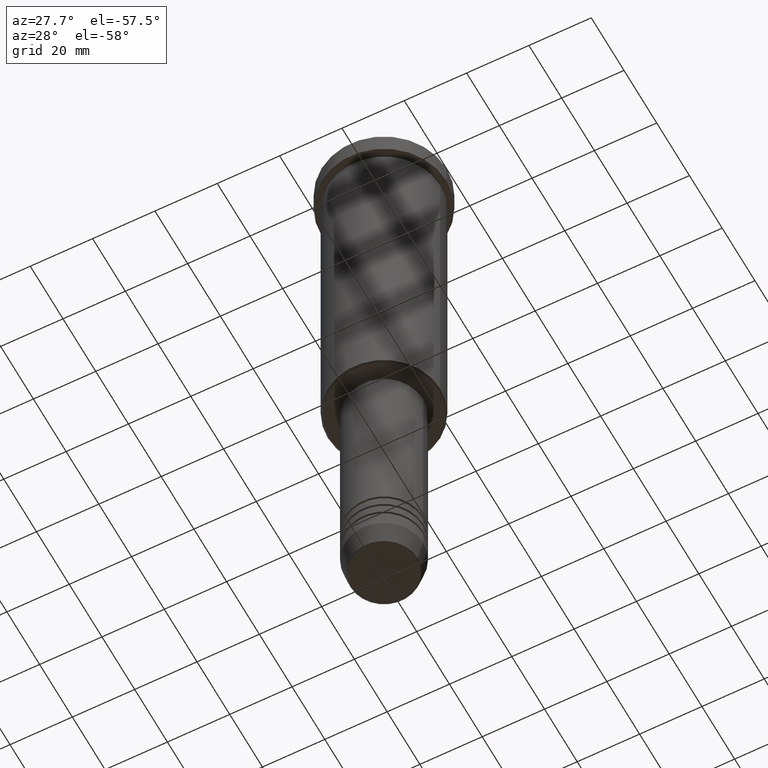
[diagram: clean part render]
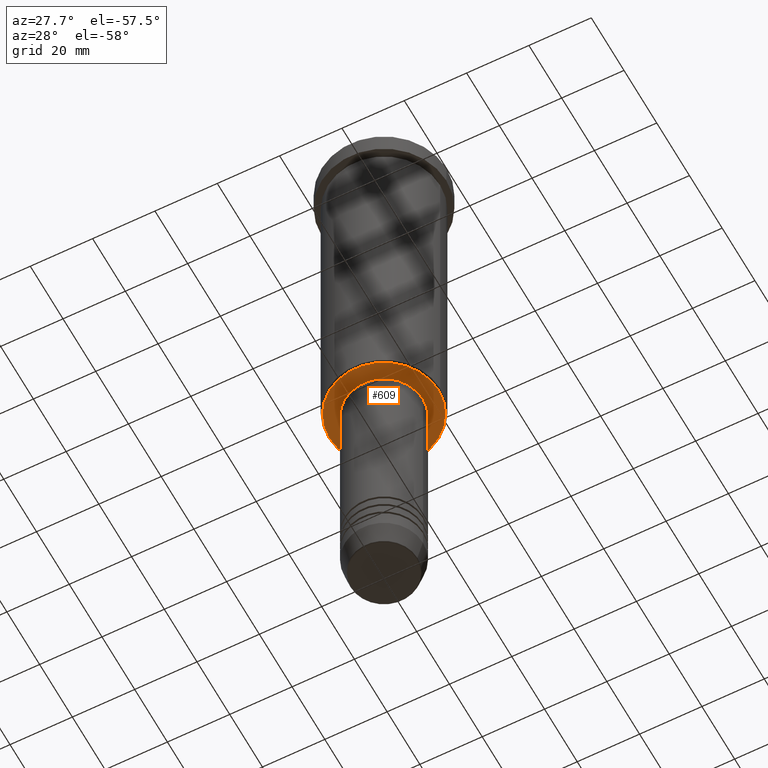
[diagram: same view with one face highlighted and labeled with its STEP entity id]
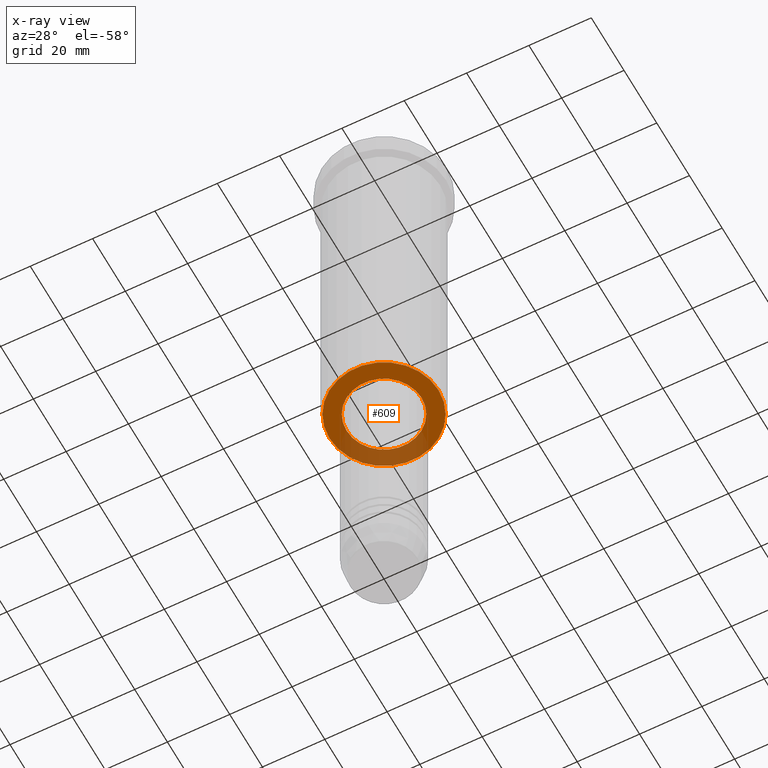
[diagram: x-ray of the same camera — body ghosted, the highlighted face saturated]
A machine part, auxiliary view. The second image highlights one B-rep face of the part: STEP entity #609.
The next image is the same camera in x-ray: the body ghosted, the highlighted face saturated — about 30% of this face is hidden behind the body in this view.
In plain terms, the highlighted planar face has unit normal (0, 0, -1).
Its self-contained STEP definition (entity closure, byte-faithful):
#23 = AXIS2_PLACEMENT_3D ( 'NONE', #151, #859, #684 ) ;
#68 = AXIS2_PLACEMENT_3D ( 'NONE', #428, #1173, #342 ) ;
#73 = CARTESIAN_POINT ( 'NONE',  ( 0.000000000000000000, 0.000000000000000000, -115.9999999999999858 ) ) ;
#81 = FACE_BOUND ( 'NONE', #203, .T. ) ;
#91 = EDGE_LOOP ( 'NONE', ( #173, #933 ) ) ;
#124 = CARTESIAN_POINT ( 'NONE',  ( 0.000000000000000000, 0.000000000000000000, -115.9999999999999858 ) ) ;
#129 = DIRECTION ( 'NONE',  ( 1.000000000000000000, 0.000000000000000000, 0.000000000000000000 ) ) ;
#151 = CARTESIAN_POINT ( 'NONE',  ( 0.000000000000000000, 0.000000000000000000, -115.9999999999999858 ) ) ;
#157 = CARTESIAN_POINT ( 'NONE',  ( 12.00000000000000000, 0.000000000000000000, -115.9999999999999858 ) ) ;
#165 = DIRECTION ( 'NONE',  ( 1.000000000000000000, 0.000000000000000000, 0.000000000000000000 ) ) ;
#172 = EDGE_CURVE ( 'NONE', #642, #243, #521, .T. ) ;
#173 = ORIENTED_EDGE ( 'NONE', *, *, #1119, .T. ) ;
#174 = AXIS2_PLACEMENT_3D ( 'NONE', #124, #646, #129 ) ;
#203 = EDGE_LOOP ( 'NONE', ( #1008, #206 ) ) ;
#206 = ORIENTED_EDGE ( 'NONE', *, *, #1095, .T. ) ;
#243 = VERTEX_POINT ( 'NONE', #748 ) ;
#342 = DIRECTION ( 'NONE',  ( -1.000000000000000000, 0.000000000000000000, 0.000000000000000000 ) ) ;
#374 = CARTESIAN_POINT ( 'NONE',  ( -17.49999999999996092, 2.173748068486549274E-15, -115.9999999999999858 ) ) ;
#428 = CARTESIAN_POINT ( 'NONE',  ( 0.000000000000000000, 0.000000000000000000, -115.9999999999999858 ) ) ;
#430 = DIRECTION ( 'NONE',  ( 0.000000000000000000, 0.000000000000000000, -1.000000000000000000 ) ) ;
#437 = EDGE_CURVE ( 'NONE', #724, #573, #522, .T. ) ;
#466 = AXIS2_PLACEMENT_3D ( 'NONE', #73, #1067, #165 ) ;
#521 = CIRCLE ( 'NONE', #174, 12.00000000000000000 ) ;
#522 = CIRCLE ( 'NONE', #23, 17.49999999999996092 ) ;
#573 = VERTEX_POINT ( 'NONE', #899 ) ;
#609 = ADVANCED_FACE ( 'NONE', ( #1157, #81 ), #807, .T. ) ;
#641 = CIRCLE ( 'NONE', #466, 12.00000000000000000 ) ;
#642 = VERTEX_POINT ( 'NONE', #157 ) ;
#646 = DIRECTION ( 'NONE',  ( -0.000000000000000000, -0.000000000000000000, 1.000000000000000000 ) ) ;
#661 = AXIS2_PLACEMENT_3D ( 'NONE', #1177, #430, #701 ) ;
#684 = DIRECTION ( 'NONE',  ( -1.000000000000000000, 0.000000000000000000, 0.000000000000000000 ) ) ;
#701 = DIRECTION ( 'NONE',  ( -1.000000000000000000, 0.000000000000000000, -0.000000000000000000 ) ) ;
#724 = VERTEX_POINT ( 'NONE', #374 ) ;
#748 = CARTESIAN_POINT ( 'NONE',  ( -12.00000000000000000, 1.469576158976823947E-15, -115.9999999999999858 ) ) ;
#807 = PLANE ( 'NONE',  #661 ) ;
#859 = DIRECTION ( 'NONE',  ( 0.000000000000000000, 0.000000000000000000, -1.000000000000000000 ) ) ;
#899 = CARTESIAN_POINT ( 'NONE',  ( 17.49999999999996092, 0.000000000000000000, -115.9999999999999858 ) ) ;
#933 = ORIENTED_EDGE ( 'NONE', *, *, #437, .T. ) ;
#1008 = ORIENTED_EDGE ( 'NONE', *, *, #172, .T. ) ;
#1067 = DIRECTION ( 'NONE',  ( -0.000000000000000000, -0.000000000000000000, 1.000000000000000000 ) ) ;
#1095 = EDGE_CURVE ( 'NONE', #243, #642, #641, .T. ) ;
#1119 = EDGE_CURVE ( 'NONE', #573, #724, #1153, .T. ) ;
#1153 = CIRCLE ( 'NONE', #68, 17.49999999999996092 ) ;
#1157 = FACE_OUTER_BOUND ( 'NONE', #91, .T. ) ;
#1173 = DIRECTION ( 'NONE',  ( 0.000000000000000000, 0.000000000000000000, -1.000000000000000000 ) ) ;
#1177 = CARTESIAN_POINT ( 'NONE',  ( 0.000000000000000000, 18.00000000000000000, -115.9999999999999858 ) ) ;